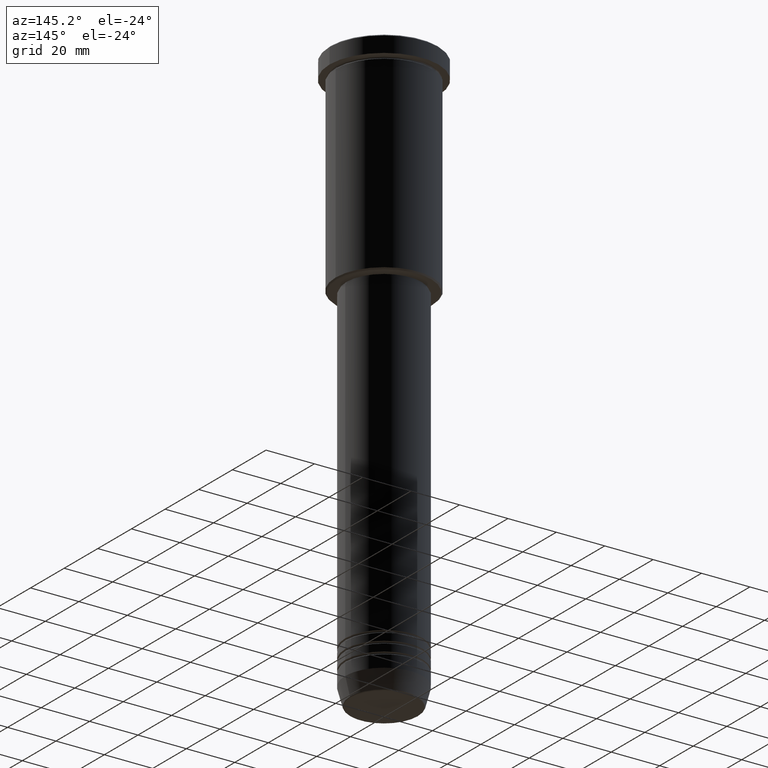
[diagram: clean part render]
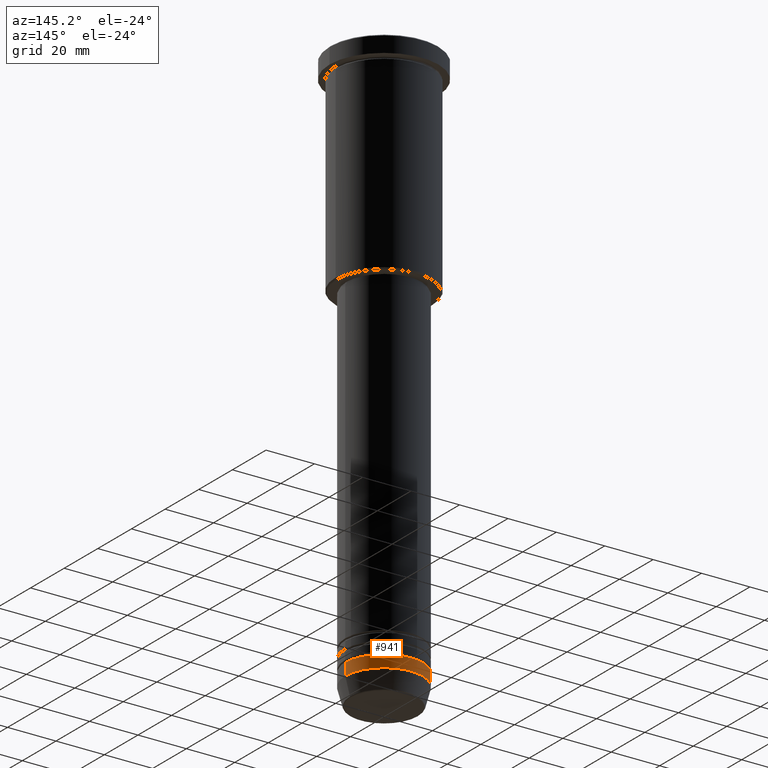
[diagram: same view with one face highlighted and labeled with its STEP entity id]
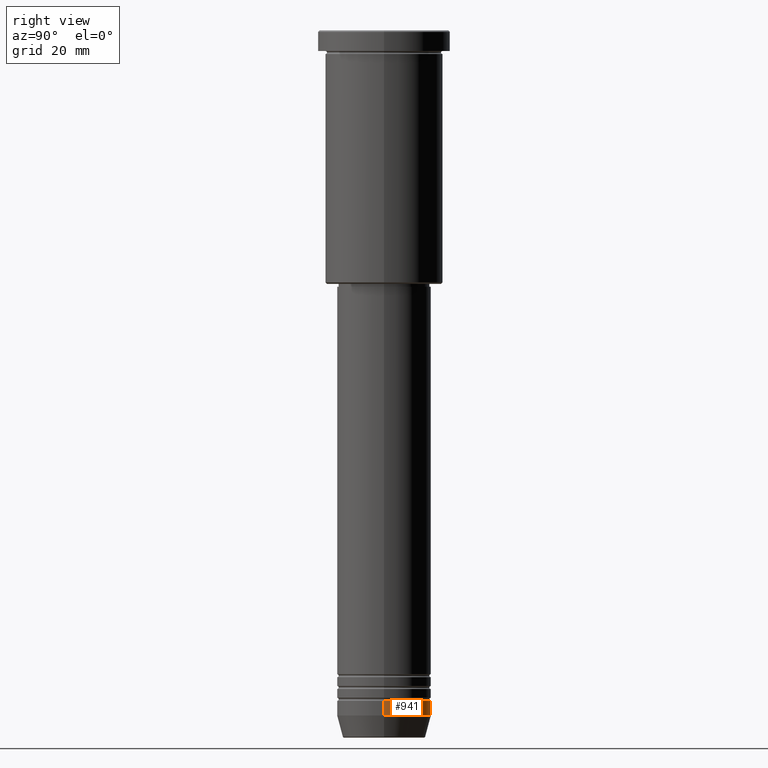
[diagram: same view with one face highlighted and labeled with its STEP entity id]
A machine part, auxiliary view. The second image highlights one B-rep face of the part: STEP entity #941.
A second angle (right view) of the same face is appended — the face is thin or edge-on in the first view.
In plain terms, the highlighted cylindrical surface (partial cylindrical patch) has radius 16 mm, axis along (-0, -0, 1).
Its self-contained STEP definition (entity closure, byte-faithful):
#3 = EDGE_CURVE ( 'NONE', #574, #324, #453, .T. ) ;
#60 = CARTESIAN_POINT ( 'NONE',  ( 0.000000000000000000, 0.000000000000000000, -232.5000000000000000 ) ) ;
#65 = CARTESIAN_POINT ( 'NONE',  ( 0.000000000000000000, 0.000000000000000000, -227.5000000000000000 ) ) ;
#104 = AXIS2_PLACEMENT_3D ( 'NONE', #60, #687, #525 ) ;
#159 = CYLINDRICAL_SURFACE ( 'NONE', #338, 16.00000000000000000 ) ;
#180 = DIRECTION ( 'NONE',  ( 1.000000000000000000, 0.000000000000000000, 0.000000000000000000 ) ) ;
#210 = VERTEX_POINT ( 'NONE', #761 ) ;
#272 = FACE_OUTER_BOUND ( 'NONE', #378, .T. ) ;
#289 = EDGE_CURVE ( 'NONE', #970, #574, #1137, .T. ) ;
#302 = ORIENTED_EDGE ( 'NONE', *, *, #3, .T. ) ;
#311 = EDGE_CURVE ( 'NONE', #210, #324, #677, .T. ) ;
#324 = VERTEX_POINT ( 'NONE', #458 ) ;
#338 = AXIS2_PLACEMENT_3D ( 'NONE', #630, #996, #180 ) ;
#352 = AXIS2_PLACEMENT_3D ( 'NONE', #65, #977, #972 ) ;
#378 = EDGE_LOOP ( 'NONE', ( #562, #302, #995, #510 ) ) ;
#453 = LINE ( 'NONE', #467, #1124 ) ;
#458 = CARTESIAN_POINT ( 'NONE',  ( -16.00000000000000000, 1.959434878635765131E-15, -227.5000000000000000 ) ) ;
#467 = CARTESIAN_POINT ( 'NONE',  ( -16.00000000000000000, 1.959434878635765131E-15, 0.000000000000000000 ) ) ;
#497 = VECTOR ( 'NONE', #910, 1000.000000000000000 ) ;
#510 = ORIENTED_EDGE ( 'NONE', *, *, #1053, .F. ) ;
#525 = DIRECTION ( 'NONE',  ( 1.000000000000000000, 0.000000000000000000, 0.000000000000000000 ) ) ;
#562 = ORIENTED_EDGE ( 'NONE', *, *, #289, .T. ) ;
#574 = VERTEX_POINT ( 'NONE', #582 ) ;
#582 = CARTESIAN_POINT ( 'NONE',  ( -16.00000000000000000, 1.959434878635765131E-15, -232.5000000000000000 ) ) ;
#630 = CARTESIAN_POINT ( 'NONE',  ( 0.000000000000000000, 0.000000000000000000, 0.000000000000000000 ) ) ;
#677 = CIRCLE ( 'NONE', #352, 16.00000000000000000 ) ;
#687 = DIRECTION ( 'NONE',  ( -0.000000000000000000, -0.000000000000000000, 1.000000000000000000 ) ) ;
#761 = CARTESIAN_POINT ( 'NONE',  ( 16.00000000000000000, 0.000000000000000000, -227.5000000000000000 ) ) ;
#813 = DIRECTION ( 'NONE',  ( -0.000000000000000000, -0.000000000000000000, 1.000000000000000000 ) ) ;
#822 = LINE ( 'NONE', #1113, #497 ) ;
#910 = DIRECTION ( 'NONE',  ( -0.000000000000000000, -0.000000000000000000, 1.000000000000000000 ) ) ;
#941 = ADVANCED_FACE ( 'NONE', ( #272 ), #159, .T. ) ;
#970 = VERTEX_POINT ( 'NONE', #1037 ) ;
#972 = DIRECTION ( 'NONE',  ( 1.000000000000000000, 0.000000000000000000, 0.000000000000000000 ) ) ;
#977 = DIRECTION ( 'NONE',  ( -0.000000000000000000, -0.000000000000000000, 1.000000000000000000 ) ) ;
#995 = ORIENTED_EDGE ( 'NONE', *, *, #311, .F. ) ;
#996 = DIRECTION ( 'NONE',  ( -0.000000000000000000, -0.000000000000000000, 1.000000000000000000 ) ) ;
#1037 = CARTESIAN_POINT ( 'NONE',  ( 16.00000000000000000, 0.000000000000000000, -232.5000000000000000 ) ) ;
#1053 = EDGE_CURVE ( 'NONE', #970, #210, #822, .T. ) ;
#1113 = CARTESIAN_POINT ( 'NONE',  ( 16.00000000000000000, 0.000000000000000000, 0.000000000000000000 ) ) ;
#1124 = VECTOR ( 'NONE', #813, 1000.000000000000000 ) ;
#1137 = CIRCLE ( 'NONE', #104, 16.00000000000000000 ) ;